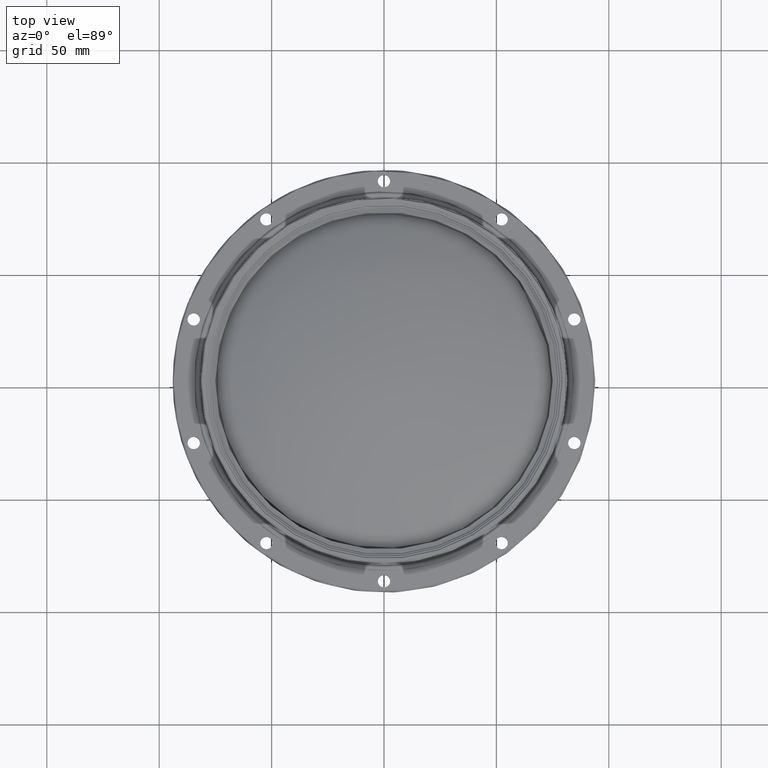
[diagram: clean part render]
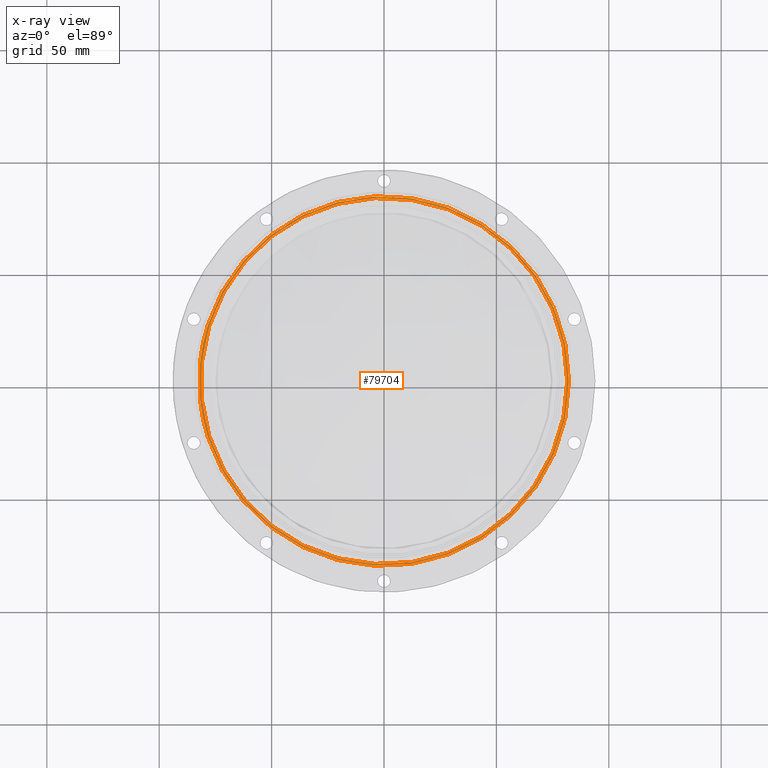
[diagram: x-ray — body ghosted, one internal face saturated and labeled with its STEP entity id]
A machine part, top view, then the same camera in x-ray: the body is ghosted and one INTERNAL B-rep face — a face not visible from any outside direction — is saturated and labeled: STEP entity #79704.
In plain terms, the highlighted planar face has unit normal (0, 0, 1).
Its self-contained STEP definition (entity closure, byte-faithful):
#134 = CARTESIAN_POINT ( 'NONE',  ( 0.000000000000000000, 0.000000000000000000, -20.15934851268138672 ) ) ;
#10253 = FACE_OUTER_BOUND ( 'NONE', #18821, .T. ) ;
#10840 = DIRECTION ( 'NONE',  ( 1.000000000000000000, 0.000000000000000000, -0.000000000000000000 ) ) ;
#11119 = AXIS2_PLACEMENT_3D ( 'NONE', #63618, #99625, #10840 ) ;
#18475 = ORIENTED_EDGE ( 'NONE', *, *, #100534, .T. ) ;
#18606 = EDGE_CURVE ( 'NONE', #60082, #60082, #66141, .T. ) ;
#18821 = EDGE_LOOP ( 'NONE', ( #37552 ) ) ;
#21274 = CARTESIAN_POINT ( 'NONE',  ( 0.000000000000000000, 0.000000000000000000, -20.15934851268138672 ) ) ;
#21359 = VERTEX_POINT ( 'NONE', #59071 ) ;
#24115 = CARTESIAN_POINT ( 'NONE',  ( 82.26133566486527116, 0.000000000000000000, -20.15934851268138672 ) ) ;
#37552 = ORIENTED_EDGE ( 'NONE', *, *, #18606, .F. ) ;
#42629 = AXIS2_PLACEMENT_3D ( 'NONE', #21274, #57831, #47669 ) ;
#47669 = DIRECTION ( 'NONE',  ( 1.000000000000000000, 0.000000000000000000, 0.000000000000000000 ) ) ;
#57831 = DIRECTION ( 'NONE',  ( -0.000000000000000000, -0.000000000000000000, -1.000000000000000000 ) ) ;
#59071 = CARTESIAN_POINT ( 'NONE',  ( 81.50000000000000000, 0.000000000000000000, -20.15934851268138672 ) ) ;
#60082 = VERTEX_POINT ( 'NONE', #24115 ) ;
#63618 = CARTESIAN_POINT ( 'NONE',  ( 0.000000000000000000, 0.000000000000000000, -20.15934851268138672 ) ) ;
#64246 = DIRECTION ( 'NONE',  ( 1.000000000000000000, 0.000000000000000000, 0.000000000000000000 ) ) ;
#65388 = FACE_BOUND ( 'NONE', #81282, .T. ) ;
#66141 = CIRCLE ( 'NONE', #91053, 82.26133566486527116 ) ;
#73269 = DIRECTION ( 'NONE',  ( -0.000000000000000000, -0.000000000000000000, -1.000000000000000000 ) ) ;
#79704 = ADVANCED_FACE ( 'NONE', ( #10253, #65388 ), #82223, .T. ) ;
#81282 = EDGE_LOOP ( 'NONE', ( #18475 ) ) ;
#82223 = PLANE ( 'NONE',  #11119 ) ;
#91053 = AXIS2_PLACEMENT_3D ( 'NONE', #134, #73269, #64246 ) ;
#99625 = DIRECTION ( 'NONE',  ( 0.000000000000000000, 0.000000000000000000, 1.000000000000000000 ) ) ;
#100534 = EDGE_CURVE ( 'NONE', #21359, #21359, #117298, .T. ) ;
#117298 = CIRCLE ( 'NONE', #42629, 81.50000000000000000 ) ;